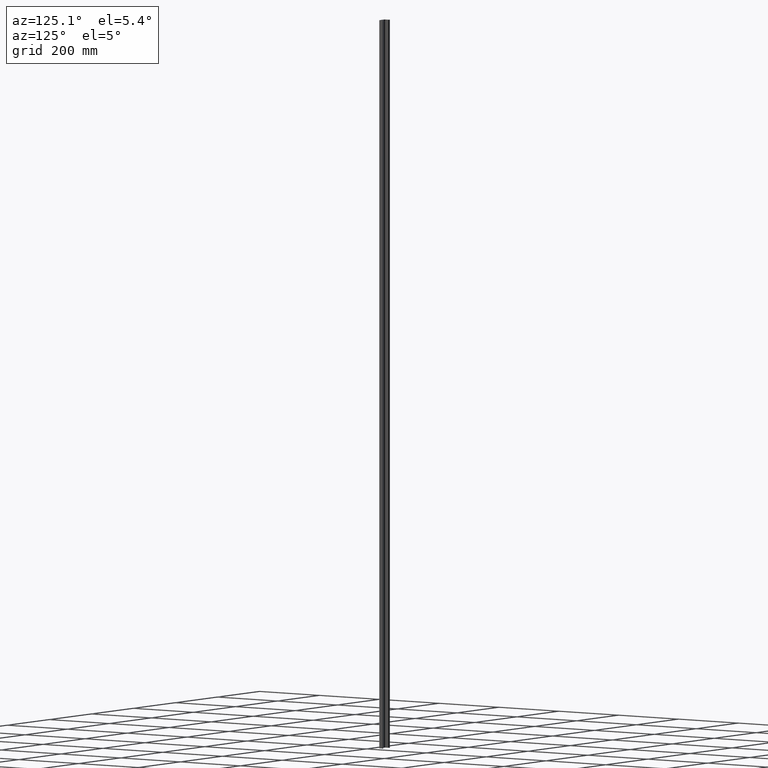
[diagram: clean part render]
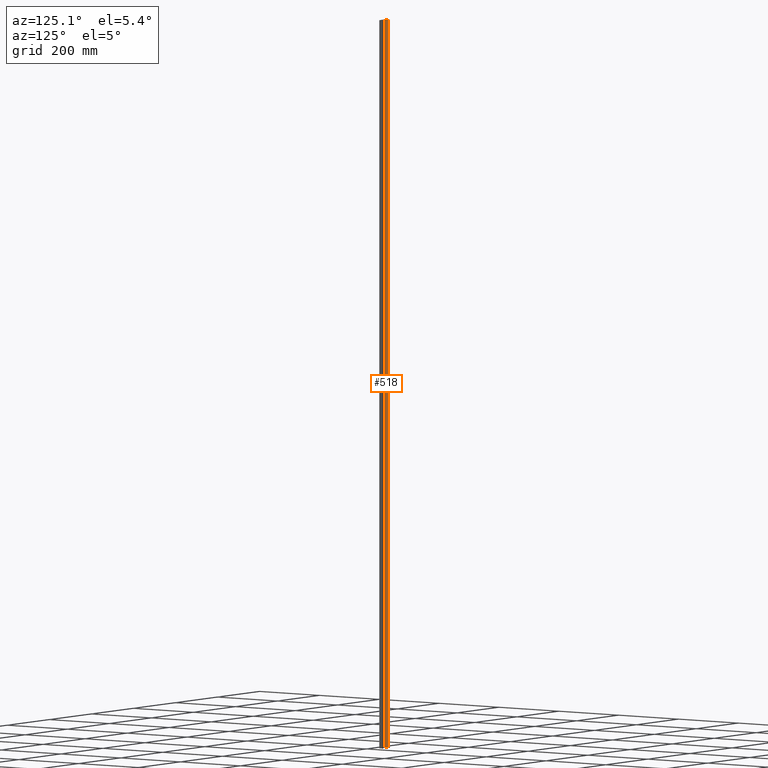
[diagram: same view with one face highlighted and labeled with its STEP entity id]
A machine part, auxiliary view. The second image highlights one B-rep face of the part: STEP entity #518.
In plain terms, the highlighted planar face has unit normal (1, 0, -0).
Its self-contained STEP definition (entity closure, byte-faithful):
#50 = LINE ( 'NONE', #56, #459 ) ;
#55 = CARTESIAN_POINT ( 'NONE',  ( -1.199999999999961500, -22.46146667334581400, 0.0000000000000000000 ) ) ;
#56 = CARTESIAN_POINT ( 'NONE',  ( -1.199999999999961500, 2.699999999999980200, 2000.000000000000000 ) ) ;
#58 = DIRECTION ( 'NONE',  ( -0.0000000000000000000, -0.0000000000000000000, -1.000000000000000000 ) ) ;
#71 = LINE ( 'NONE', #55, #948 ) ;
#84 = DIRECTION ( 'NONE',  ( 0.0000000000000000000, -1.000000000000000000, 0.0000000000000000000 ) ) ;
#110 = DIRECTION ( 'NONE',  ( 0.0000000000000000000, -1.000000000000000000, 0.0000000000000000000 ) ) ;
#127 = LINE ( 'NONE', #129, #795 ) ;
#129 = CARTESIAN_POINT ( 'NONE',  ( -1.199999999999961500, -22.46146667334581400, 2000.000000000000000 ) ) ;
#232 = CARTESIAN_POINT ( 'NONE',  ( -1.199999999999961500, 2.699999999999980200, 0.0000000000000000000 ) ) ;
#233 = CARTESIAN_POINT ( 'NONE',  ( -1.199999999999961500, 12.30000000000013000, 0.0000000000000000000 ) ) ;
#241 = CARTESIAN_POINT ( 'NONE',  ( -1.199999999999961500, 12.30000000000013000, 2000.000000000000000 ) ) ;
#268 = CARTESIAN_POINT ( 'NONE',  ( -1.199999999999961500, 2.699999999999980200, 2000.000000000000000 ) ) ;
#432 = CARTESIAN_POINT ( 'NONE',  ( -1.199999999999961500, 12.30000000000013000, 2000.000000000000000 ) ) ;
#439 = LINE ( 'NONE', #432, #536 ) ;
#440 = DIRECTION ( 'NONE',  ( -0.0000000000000000000, -0.0000000000000000000, -1.000000000000000000 ) ) ;
#459 = VECTOR ( 'NONE', #58, 1000.000000000000000 ) ;
#508 = AXIS2_PLACEMENT_3D ( 'NONE', #775, #774, #776 ) ;
#518 = ADVANCED_FACE ( 'NONE', ( #773 ), #732, .T. ) ;
#536 = VECTOR ( 'NONE', #440, 1000.000000000000000 ) ;
#636 = ORIENTED_EDGE ( 'NONE', *, *, #885, .F. ) ;
#648 = ORIENTED_EDGE ( 'NONE', *, *, #929, .T. ) ;
#654 = ORIENTED_EDGE ( 'NONE', *, *, #912, .T. ) ;
#702 = ORIENTED_EDGE ( 'NONE', *, *, #909, .F. ) ;
#718 = VERTEX_POINT ( 'NONE', #268 ) ;
#722 = EDGE_LOOP ( 'NONE', ( #702, #636, #648, #654 ) ) ;
#732 = PLANE ( 'NONE',  #508 ) ;
#736 = VERTEX_POINT ( 'NONE', #232 ) ;
#749 = VERTEX_POINT ( 'NONE', #241 ) ;
#754 = VERTEX_POINT ( 'NONE', #233 ) ;
#773 = FACE_OUTER_BOUND ( 'NONE', #722, .T. ) ;
#774 = DIRECTION ( 'NONE',  ( 1.000000000000000000, 0.0000000000000000000, -0.0000000000000000000 ) ) ;
#775 = CARTESIAN_POINT ( 'NONE',  ( -1.199999999999961500, -22.46146667334581400, 2000.000000000000000 ) ) ;
#776 = DIRECTION ( 'NONE',  ( -0.0000000000000000000, 0.0000000000000000000, -1.000000000000000000 ) ) ;
#795 = VECTOR ( 'NONE', #110, 1000.000000000000000 ) ;
#885 = EDGE_CURVE ( 'NONE', #749, #754, #439, .T. ) ;
#909 = EDGE_CURVE ( 'NONE', #754, #736, #71, .T. ) ;
#912 = EDGE_CURVE ( 'NONE', #718, #736, #50, .T. ) ;
#929 = EDGE_CURVE ( 'NONE', #749, #718, #127, .T. ) ;
#948 = VECTOR ( 'NONE', #84, 1000.000000000000000 ) ;